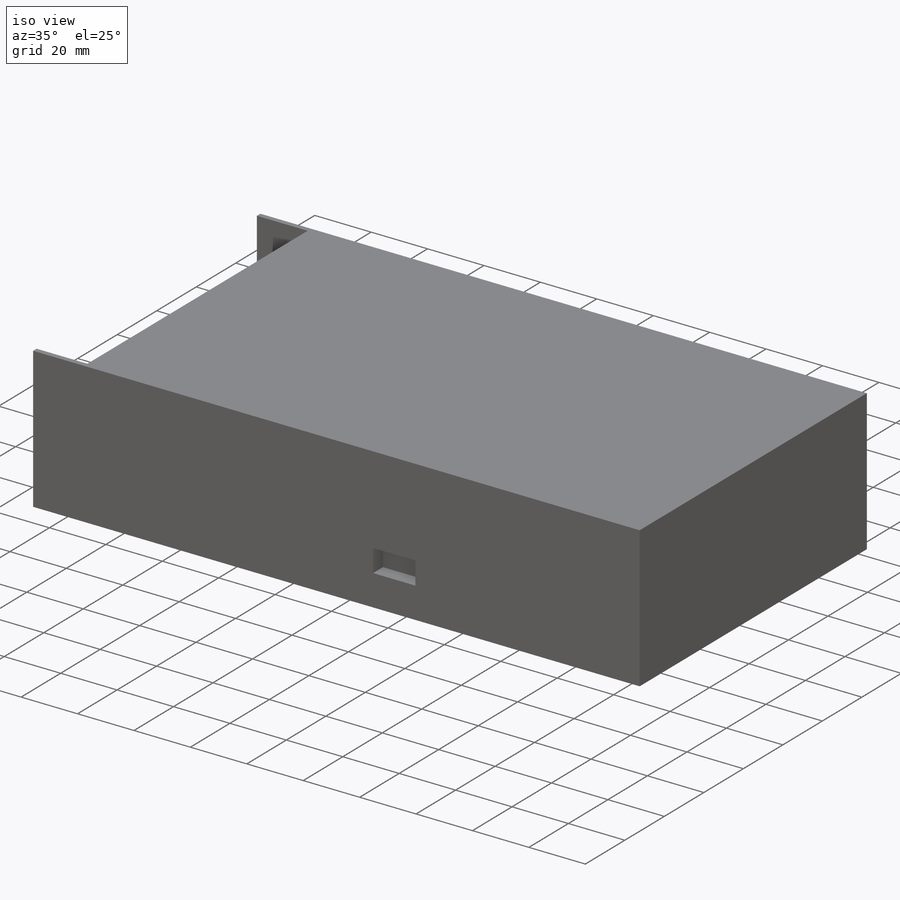
[diagram: iso view]
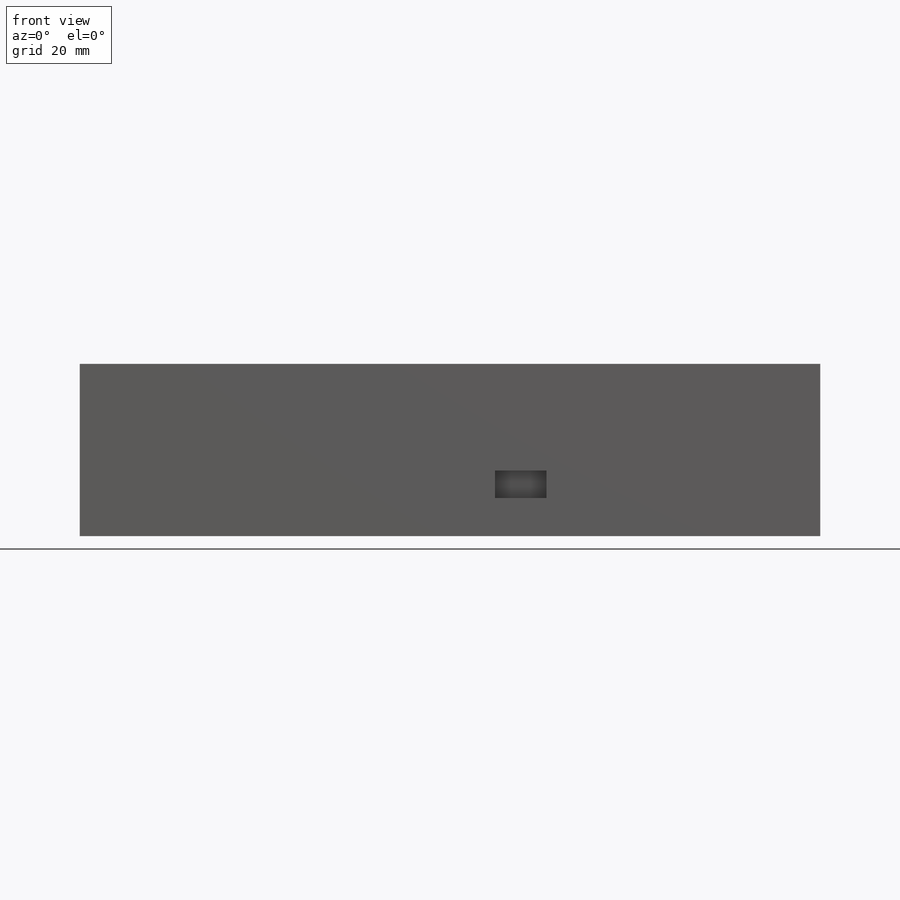
[diagram: front view]
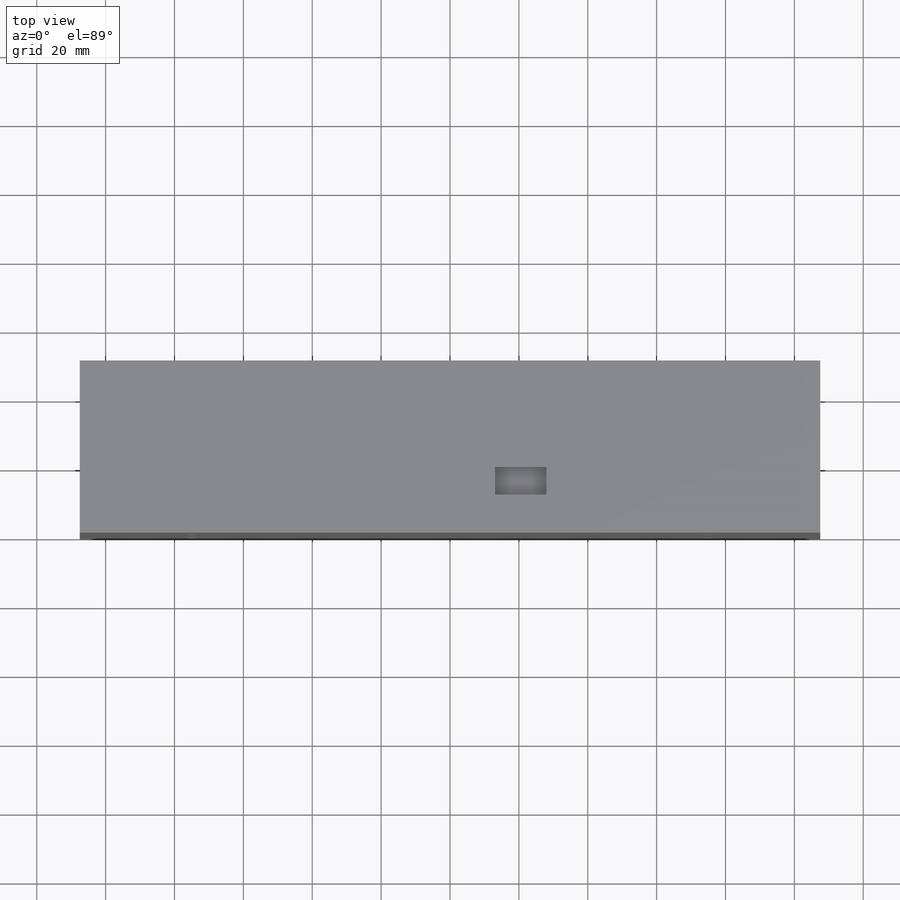
[diagram: top view]
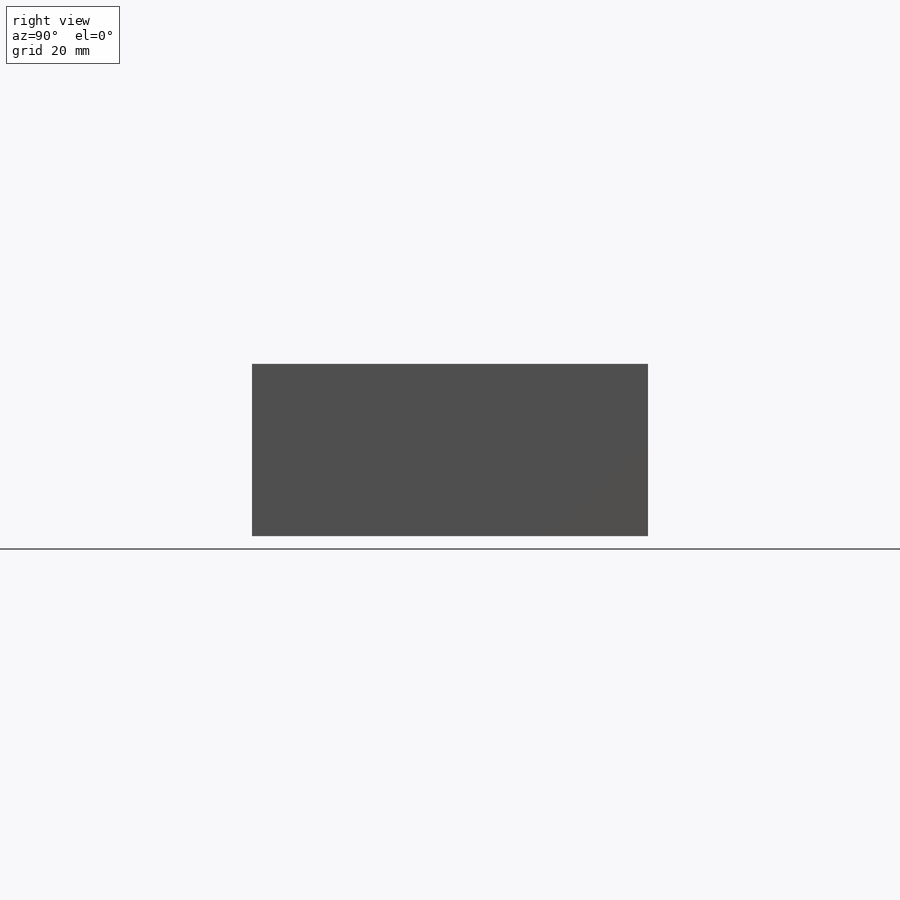
[diagram: right view]
SOLIDWORKS PART (.sldprt)
format: sldprt  version: not decoded by parser v0  size: 157,184 bytes
history: native  units: mm
features: sketch x4, cut_extrude x3, material x1, extrude x1 (+11 scaffold rows collapsed)
feature tree (20):
  scaffold x11  (default folders/planes/origin — collapsed)
  material  "Material <not specified>"
  sketch  "Sketch1"  dims[D1=115.0mm D2=215.0mm]
  extrude  "Boss-Extrude1"  Depth=50mm
  sketch  "Sketch2"  dims[D1=18.0mm D2=1.75mm D3=1.75mm]
  cut_extrude  "Cut-Extrude1"  Depth=8.75mm
  sketch  "Sketch3"  dims[D5=4.0mm D1=32.5mm D2=50.0mm D3=150.0mm D4=32.5mm]
  cut_extrude  "Cut-Extrude2"  Depth=5mm
  sketch  "Sketch4"  dims[D1=11.0mm D2=79.5mm D3=15.0mm D4=8.0mm]
  cut_extrude  "Cut-Extrude3"  Depth=5mm
decode coverage: 8 of 8 modeling features carry decoded parameters
note: suppression state not decoded; provenance and decode notes live in map.json
